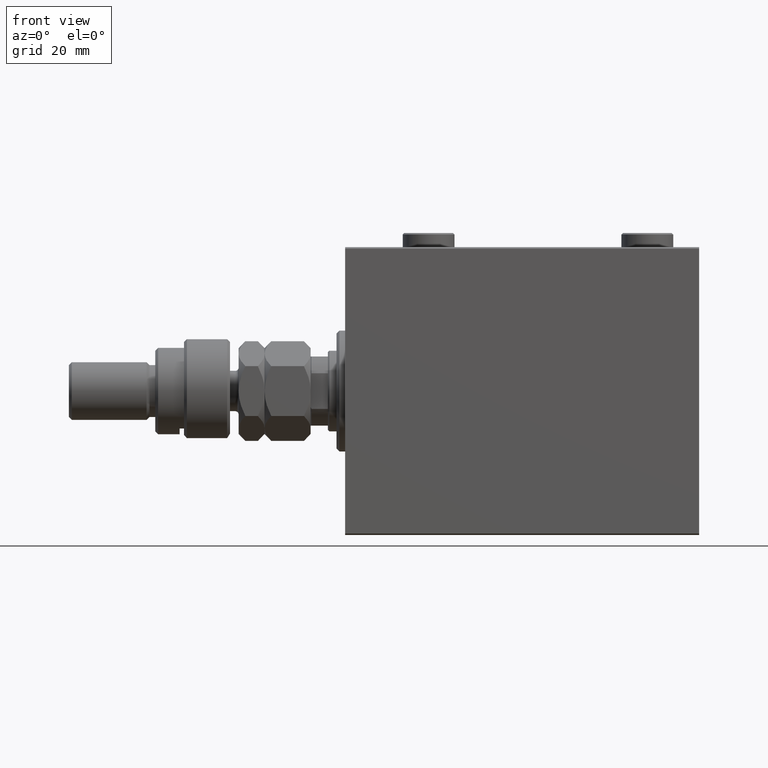
[diagram: clean part render]
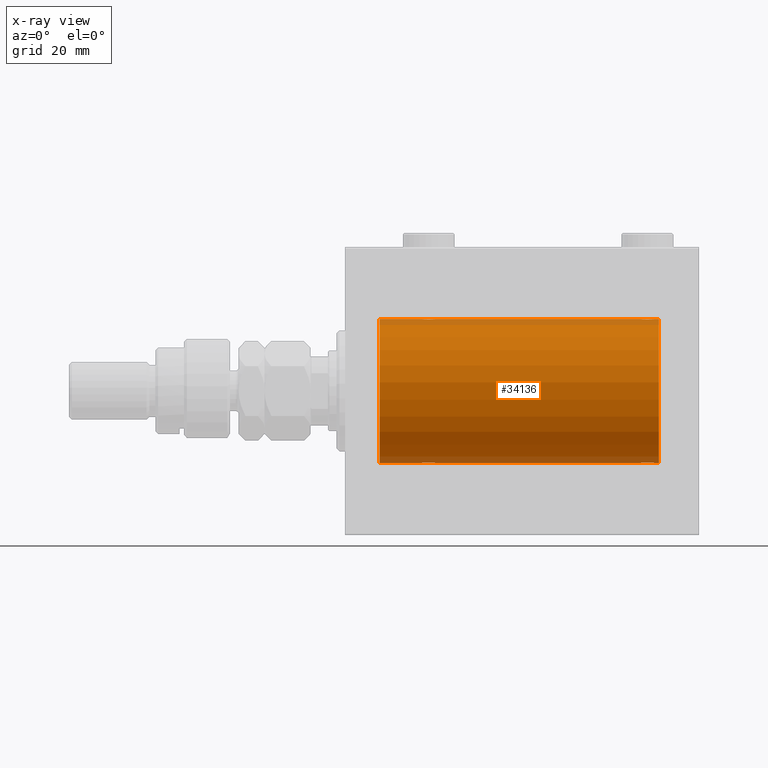
[diagram: x-ray — body ghosted, one internal face saturated and labeled with its STEP entity id]
A machine part, front view, then the same camera in x-ray: the body is ghosted and one INTERNAL B-rep face — a face not visible from any outside direction — is saturated and labeled: STEP entity #34136.
In plain terms, the highlighted cylindrical surface (partial cylindrical patch) has radius 25 mm, axis along (-1, -0, -0).
Its self-contained STEP definition (entity closure, byte-faithful):
#690 = CARTESIAN_POINT ( 'NONE',  ( 31.24760251019550950, -1.106703319666878071, -24.97594585958023572 ) ) ;
#719 = LINE ( 'NONE', #23050, #19494 ) ;
#1034 = DIRECTION ( 'NONE',  ( -1.000000000000000000, -0.000000000000000000, -0.000000000000000000 ) ) ;
#1972 = CARTESIAN_POINT ( 'NONE',  ( 11.99999999999999645, 0.000000000000000000, 0.000000000000000000 ) ) ;
#2147 = CARTESIAN_POINT ( 'NONE',  ( 106.6538333614933975, -1.881857718844729188, -24.92933960374833546 ) ) ;
#2397 = CARTESIAN_POINT ( 'NONE',  ( 107.5000000000000000, 3.061616978466108082E-15, -25.00000000000000000 ) ) ;
#2613 = CARTESIAN_POINT ( 'NONE',  ( 26.50000000000000711, -0.1631750940176210085, 25.00000000000000355 ) ) ;
#2884 = CARTESIAN_POINT ( 'NONE',  ( 107.5000000000000000, 3.101442856047762335E-15, 25.00000000000000000 ) ) ;
#3298 = CARTESIAN_POINT ( 'NONE',  ( 104.8329350482194116, -2.499872792855098780, 24.87469871246082675 ) ) ;
#3342 = LINE ( 'NONE', #22715, #31345 ) ;
#3373 = CARTESIAN_POINT ( 'NONE',  ( 102.7539362090593187, -1.109818057797434143, -24.97580694515541921 ) ) ;
#3531 = CARTESIAN_POINT ( 'NONE',  ( 102.5798509077906715, -0.6480119923854293917, 24.99212088949391131 ) ) ;
#3608 = CARTESIAN_POINT ( 'NONE',  ( 106.1103679650886136, -2.245863995402916924, -24.89899750494197050 ) ) ;
#3852 = CARTESIAN_POINT ( 'NONE',  ( 104.6740342996053670, -2.484007091859777638, -24.87630842367762796 ) ) ;
#4082 = EDGE_CURVE ( 'NONE', #18599, #10182, #45349, .T. ) ;
#4239 = EDGE_CURVE ( 'NONE', #38406, #5918, #719, .T. ) ;
#4855 = CARTESIAN_POINT ( 'NONE',  ( 27.11814045851354038, -1.653834020452936038, -24.94550385189584674 ) ) ;
#5379 = CARTESIAN_POINT ( 'NONE',  ( 31.43349355239747567, -0.6588655613945897382, 24.99312727339969697 ) ) ;
#5390 = ORIENTED_EDGE ( 'NONE', *, *, #28134, .T. ) ;
#5575 = CARTESIAN_POINT ( 'NONE',  ( 27.47743225659810307, -1.989585286700244149, -24.92087098724765681 ) ) ;
#5755 = LINE ( 'NONE', #27844, #7033 ) ;
#5830 = CARTESIAN_POINT ( 'NONE',  ( 107.4841784005765817, -0.3254210271412233957, -24.99840249400844883 ) ) ;
#5876 = CARTESIAN_POINT ( 'NONE',  ( 109.0000000000000000, 3.061616997868383043E-15, -25.00000000000000000 ) ) ;
#5918 = VERTEX_POINT ( 'NONE', #20350 ) ;
#6487 = CARTESIAN_POINT ( 'NONE',  ( 105.1632358963854443, -2.500125740978211386, 24.87467329022544860 ) ) ;
#6553 = EDGE_LOOP ( 'NONE', ( #20276, #40706, #37572, #28544, #5390, #28037, #42565, #17209, #26995, #42333, #16527, #25596 ) ) ;
#6567 = CARTESIAN_POINT ( 'NONE',  ( 107.1701129028092794, -1.252049606094338241, -24.96900299967627745 ) ) ;
#6727 = CARTESIAN_POINT ( 'NONE',  ( 107.1682764149395268, -1.255214705003183662, 24.96884293994577320 ) ) ;
#6807 = CARTESIAN_POINT ( 'NONE',  ( 105.1670649517806169, -2.499872792855096559, -24.87469871246082320 ) ) ;
#6971 = B_SPLINE_CURVE_WITH_KNOTS ( 'NONE', 3,
 ( #2397, #32323, #5830, #32568, #47557, #25213, #6567, #21532, #35762, #2147, #18330, #7534, #3608, #48050, #44350, #22262, #6807, #36734, #3852, #44839, #45078, #48525, #10742, #22743, #37465, #14414, #19051, #29374, #3373, #34022, #33299, #22501 ),
 .UNSPECIFIED., .F., .F.,
 ( 4, 2, 2, 2, 2, 2, 2, 2, 2, 2, 2, 2, 2, 2, 2, 4 ),
 ( 0.007821024441662317167, 0.008309723826317923570, 0.008798423210973531708, 0.009287122595629138111, 0.009775821980284744514, 0.01026452136494035092, 0.01075322074959595905, 0.01124192013425156546, 0.01173061951890717186, 0.01221931890356278000, 0.01270801828821838640, 0.01319671767287399280, 0.01368541705752960094, 0.01417411644218520735, 0.01466281582684081375, 0.01564021459615204390 ),
 .UNSPECIFIED. ) ;
#7033 = VECTOR ( 'NONE', #31998, 1000.000000000000000 ) ;
#7534 = CARTESIAN_POINT ( 'NONE',  ( 106.2538319542450296, -2.169003991399883091, -24.90589728951138326 ) ) ;
#8069 = CARTESIAN_POINT ( 'NONE',  ( 31.50000000000000000, -0.1631750940176180942, -25.00000000000001066 ) ) ;
#8596 = CARTESIAN_POINT ( 'NONE',  ( 29.16323589638543368, -2.500125740978201616, 24.87467329022545215 ) ) ;
#8800 = CARTESIAN_POINT ( 'NONE',  ( 26.75393620905933290, -1.109818057797416158, -24.97580694515542277 ) ) ;
#9041 = CARTESIAN_POINT ( 'NONE',  ( 28.35439333851368460, -2.420689345803756165, -24.88254961038873958 ) ) ;
#9084 = CARTESIAN_POINT ( 'NONE',  ( 30.98538033717095175, -1.528152964861317464, 24.95362559291379156 ) ) ;
#9264 = LINE ( 'NONE', #42635, #47834 ) ;
#9318 = CARTESIAN_POINT ( 'NONE',  ( 27.34616663850662377, -1.881857718844722527, 24.92933960374833902 ) ) ;
#9929 = CIRCLE ( 'NONE', #48362, 25.00000000000000000 ) ;
#10182 = VERTEX_POINT ( 'NONE', #11375 ) ;
#10223 = CARTESIAN_POINT ( 'NONE',  ( 26.75239748980448695, -1.106703319666887175, 24.97594585958023572 ) ) ;
#10297 = VECTOR ( 'NONE', #1034, 1000.000000000000000 ) ;
#10430 = CARTESIAN_POINT ( 'NONE',  ( 103.8896320349113722, -2.245863995402917812, 24.89899750494197050 ) ) ;
#10609 = CARTESIAN_POINT ( 'NONE',  ( 30.98749815834398902, -1.525407911884361312, -24.95379469572362652 ) ) ;
#10663 = CARTESIAN_POINT ( 'NONE',  ( 106.9853803371709660, -1.528152964861316132, 24.95362559291378801 ) ) ;
#10742 = CARTESIAN_POINT ( 'NONE',  ( 103.7491597607594684, -2.170728182476735491, -24.90574631553725027 ) ) ;
#10893 = DIRECTION ( 'NONE',  ( -1.000000000000000000, -0.000000000000000000, -0.000000000000000000 ) ) ;
#11375 = CARTESIAN_POINT ( 'NONE',  ( 109.0000000000000000, 0.000000000000000000, 25.00000000000000000 ) ) ;
#11976 = DIRECTION ( 'NONE',  ( -1.000000000000000000, -0.000000000000000000, -0.000000000000000000 ) ) ;
#12221 = CARTESIAN_POINT ( 'NONE',  ( 27.34878866440888245, -1.884161199660614017, -24.92916496727982434 ) ) ;
#12518 = CARTESIAN_POINT ( 'NONE',  ( 31.50000000000000000, -2.684100552846272733E-15, 25.00000000000000000 ) ) ;
#12763 = CARTESIAN_POINT ( 'NONE',  ( 29.32596570039460104, -2.484007091859770089, 24.87630842367763506 ) ) ;
#12953 = CARTESIAN_POINT ( 'NONE',  ( 29.32947680114268252, -2.483544361357266084, -24.87635491893501083 ) ) ;
#13186 = CARTESIAN_POINT ( 'NONE',  ( 26.83172358506043054, -1.255214705003178555, -24.96884293994578030 ) ) ;
#13560 = CARTESIAN_POINT ( 'NONE',  ( 107.5000000000000000, 3.061616978466108082E-15, -25.00000000000000000 ) ) ;
#13816 = EDGE_CURVE ( 'NONE', #39078, #31632, #34885, .T. ) ;
#13847 = CARTESIAN_POINT ( 'NONE',  ( 107.5000000000000284, -0.3305063766663766667, 25.00000000000000355 ) ) ;
#14095 = CARTESIAN_POINT ( 'NONE',  ( 102.7523974898044798, -1.106703319666893393, 24.97594585958023217 ) ) ;
#14340 = CARTESIAN_POINT ( 'NONE',  ( 105.6456066614863261, -2.420689345803773040, 24.88254961038873603 ) ) ;
#14414 = CARTESIAN_POINT ( 'NONE',  ( 103.1181404585135510, -1.653834020452952469, -24.94550385189584318 ) ) ;
#14816 = CARTESIAN_POINT ( 'NONE',  ( 103.7461680457549704, -2.169003991399884423, 24.90589728951138682 ) ) ;
#14848 = VERTEX_POINT ( 'NONE', #13560 ) ;
#14970 = CARTESIAN_POINT ( 'NONE',  ( 109.0000000000000000, 0.000000000000000000, 0.000000000000000000 ) ) ;
#15655 = CARTESIAN_POINT ( 'NONE',  ( 31.17011290280925451, -1.252049606094333578, -24.96900299967627745 ) ) ;
#15896 = CARTESIAN_POINT ( 'NONE',  ( 29.16706495178060621, -2.499872792855077464, -24.87469871246082320 ) ) ;
#16136 = VERTEX_POINT ( 'NONE', #2884 ) ;
#16426 = CARTESIAN_POINT ( 'NONE',  ( 26.62784030591392792, -0.8058335233485494076, 24.98746277938382576 ) ) ;
#16527 = ORIENTED_EDGE ( 'NONE', *, *, #44579, .T. ) ;
#16667 = CARTESIAN_POINT ( 'NONE',  ( 27.47463817756919013, -1.987446652080266496, 24.92104239223420592 ) ) ;
#16792 = CARTESIAN_POINT ( 'NONE',  ( 102.5000000000000000, -0.1631750940176233677, 25.00000000000000711 ) ) ;
#17209 = ORIENTED_EDGE ( 'NONE', *, *, #41521, .F. ) ;
#18302 = DIRECTION ( 'NONE',  ( -1.000000000000000000, -0.000000000000000000, -0.000000000000000000 ) ) ;
#18330 = CARTESIAN_POINT ( 'NONE',  ( 106.5253618224308099, -1.987446652080275156, -24.92104239223420592 ) ) ;
#18491 = CARTESIAN_POINT ( 'NONE',  ( 104.3509560983090410, -2.419770561643924012, 24.88263927071751525 ) ) ;
#18599 = VERTEX_POINT ( 'NONE', #5876 ) ;
#19051 = CARTESIAN_POINT ( 'NONE',  ( 103.0146196628290198, -1.528152964861329899, -24.95362559291378091 ) ) ;
#19494 = VECTOR ( 'NONE', #23783, 1000.000000000000000 ) ;
#19825 = CARTESIAN_POINT ( 'NONE',  ( 29.64904390169096970, -2.419770561643905804, -24.88263927071751169 ) ) ;
#20067 = CARTESIAN_POINT ( 'NONE',  ( 29.80788342405805835, -2.371528299825741648, -24.88734287464370709 ) ) ;
#20276 = ORIENTED_EDGE ( 'NONE', *, *, #4082, .F. ) ;
#20350 = CARTESIAN_POINT ( 'NONE',  ( 31.50000000000000000, 3.061616978460191625E-15, -25.00000000000000000 ) ) ;
#20540 = CARTESIAN_POINT ( 'NONE',  ( 30.11036796508864910, -2.245863995402895164, -24.89899750494197406 ) ) ;
#21346 = B_SPLINE_CURVE_WITH_KNOTS ( 'NONE', 3,
 ( #23800, #2613, #35076, #42927, #16426, #10223, #47526, #27225, #31628, #9318, #16667, #42449, #46612, #40143, #38751, #24039, #43825, #8596, #12763, #24275, #31394, #27474, #27711, #34834, #42690, #35316, #9084, #39232, #38985, #5379, #25182, #12518 ),
 .UNSPECIFIED., .F., .F.,
 ( 4, 2, 2, 2, 2, 2, 2, 2, 2, 2, 2, 2, 2, 2, 2, 4 ),
 ( 0.007821024441662254717, 0.008309723826317859385, 0.008798423210973464054, 0.009287122595629070457, 0.009775821980284676860, 0.01026452136494028153, 0.01075322074959588620, 0.01124192013425149260, 0.01173061951890709900, 0.01221931890356270367, 0.01270801828821830834, 0.01319671767287391301, 0.01368541705752951768, 0.01417411644218512408, 0.01466281582684072701, 0.01564021459615193982 ),
 .UNSPECIFIED. ) ;
#21532 = CARTESIAN_POINT ( 'NONE',  ( 106.9874981583439819, -1.525407911884367307, -24.95379469572361586 ) ) ;
#21695 = CARTESIAN_POINT ( 'NONE',  ( 107.2460637909406813, -1.109818057797415936, 24.97580694515541921 ) ) ;
#22127 = VERTEX_POINT ( 'NONE', #42568 ) ;
#22262 = CARTESIAN_POINT ( 'NONE',  ( 105.3294768011426896, -2.483544361357282959, -24.87635491893501793 ) ) ;
#22501 = CARTESIAN_POINT ( 'NONE',  ( 102.5000000000000000, -1.280060314878013390E-14, -25.00000000000000000 ) ) ;
#22715 = CARTESIAN_POINT ( 'NONE',  ( 109.0000000000000000, 0.000000000000000000, 25.00000000000000000 ) ) ;
#22743 = CARTESIAN_POINT ( 'NONE',  ( 103.4774322565981208, -1.989585286700261468, -24.92087098724766747 ) ) ;
#23022 = CARTESIAN_POINT ( 'NONE',  ( 31.42014909220930363, -0.6480119923854200659, -24.99212088949392196 ) ) ;
#23050 = CARTESIAN_POINT ( 'NONE',  ( 109.0000000000000000, 3.061616997868383043E-15, -25.00000000000000000 ) ) ;
#23506 = CARTESIAN_POINT ( 'NONE',  ( 28.67403429960540606, -2.484007091859761207, -24.87630842367763506 ) ) ;
#23783 = DIRECTION ( 'NONE',  ( -1.000000000000000000, -0.000000000000000000, -0.000000000000000000 ) ) ;
#23800 = CARTESIAN_POINT ( 'NONE',  ( 26.50000000000000355, -1.940558383798427991E-23, 25.00000000000000000 ) ) ;
#23993 = CARTESIAN_POINT ( 'NONE',  ( 28.83676410361457343, -2.500125740978191846, -24.87467329022545925 ) ) ;
#24039 = CARTESIAN_POINT ( 'NONE',  ( 28.67052319885731038, -2.483544361357275854, 24.87635491893501793 ) ) ;
#24148 = VECTOR ( 'NONE', #48137, 1000.000000000000000 ) ;
#24275 = CARTESIAN_POINT ( 'NONE',  ( 29.64560666148632606, -2.420689345803765935, 24.88254961038873958 ) ) ;
#24884 = CARTESIAN_POINT ( 'NONE',  ( 102.5158215994234183, -0.3254210271412262823, 24.99840249400844527 ) ) ;
#25182 = CARTESIAN_POINT ( 'NONE',  ( 31.49999999999998579, -0.3305063766663716707, 25.00000000000000000 ) ) ;
#25213 = CARTESIAN_POINT ( 'NONE',  ( 107.2476025101955486, -1.106703319666890728, -24.97594585958024282 ) ) ;
#25377 = CARTESIAN_POINT ( 'NONE',  ( 103.3461666385066309, -1.881857718844731187, 24.92933960374834257 ) ) ;
#25562 = CARTESIAN_POINT ( 'NONE',  ( 31.48417840057656747, -0.3254210271412200650, -24.99840249400844527 ) ) ;
#25566 = CARTESIAN_POINT ( 'NONE',  ( 11.99999999999999645, 3.061616997868383043E-15, -25.00000000000000000 ) ) ;
#25596 = ORIENTED_EDGE ( 'NONE', *, *, #44514, .F. ) ;
#25856 = CARTESIAN_POINT ( 'NONE',  ( 105.8043566091630225, -2.372734907014189876, 24.88722742718433523 ) ) ;
#26092 = CARTESIAN_POINT ( 'NONE',  ( 109.0000000000000000, 0.000000000000000000, 0.000000000000000000 ) ) ;
#26943 = CARTESIAN_POINT ( 'NONE',  ( 30.88412382786470900, -1.651251241585097063, -24.94567559498348075 ) ) ;
#26995 = ORIENTED_EDGE ( 'NONE', *, *, #36521, .T. ) ;
#27225 = CARTESIAN_POINT ( 'NONE',  ( 27.01250184165602164, -1.525407911884368417, 24.95379469572363007 ) ) ;
#27474 = CARTESIAN_POINT ( 'NONE',  ( 30.10723845838410284, -2.247417070759901936, 24.89885693081946272 ) ) ;
#27493 = CARTESIAN_POINT ( 'NONE',  ( 31.50000000000000000, -2.684100552846272733E-15, 25.00000000000000000 ) ) ;
#27711 = CARTESIAN_POINT ( 'NONE',  ( 30.25084023924055288, -2.170728182476724832, 24.90574631553725027 ) ) ;
#27758 = B_SPLINE_CURVE_WITH_KNOTS ( 'NONE', 3,
 ( #30381, #8069, #25562, #23022, #37983, #690, #15655, #10609, #26943, #41909, #46331, #42882, #20540, #20067, #19825, #12953, #15896, #23993, #23506, #9041, #31585, #46571, #38458, #5575, #12221, #4855, #35032, #13186, #8800, #38942, #34787, #31346 ),
 .UNSPECIFIED., .F., .F.,
 ( 4, 2, 2, 2, 2, 2, 2, 2, 2, 2, 2, 2, 2, 2, 2, 4 ),
 ( 0.007821024441662299820, 0.008309723826317907958, 0.008798423210973517830, 0.009287122595629122498, 0.009775821980284727167, 0.01026452136494033184, 0.01075322074959593650, 0.01124192013425154291, 0.01173061951890714757, 0.01221931890356275051, 0.01270801828821835691, 0.01319671767287396158, 0.01368541705752956625, 0.01417411644218517092, 0.01466281582684077732, 0.01564021459615199186 ),
 .UNSPECIFIED. ) ;
#27844 = CARTESIAN_POINT ( 'NONE',  ( 109.0000000000000000, 0.000000000000000000, 25.00000000000000000 ) ) ;
#28037 = ORIENTED_EDGE ( 'NONE', *, *, #13816, .T. ) ;
#28134 = EDGE_CURVE ( 'NONE', #5918, #39078, #27758, .T. ) ;
#28544 = ORIENTED_EDGE ( 'NONE', *, *, #4239, .T. ) ;
#29058 = CARTESIAN_POINT ( 'NONE',  ( 107.4334935523975076, -0.6588655613945838541, 24.99312727339970408 ) ) ;
#29124 = CARTESIAN_POINT ( 'NONE',  ( 102.5000000000000000, -1.280060314878013390E-14, -25.00000000000000000 ) ) ;
#29299 = CARTESIAN_POINT ( 'NONE',  ( 102.8298870971906922, -1.252049606094352230, 24.96900299967626324 ) ) ;
#29374 = CARTESIAN_POINT ( 'NONE',  ( 102.8317235850603879, -1.255214705003200537, -24.96884293994577675 ) ) ;
#29941 = DIRECTION ( 'NONE',  ( -1.000000000000000000, 0.000000000000000000, 0.000000000000000000 ) ) ;
#30381 = CARTESIAN_POINT ( 'NONE',  ( 31.50000000000000000, 3.061616978460191625E-15, -25.00000000000000000 ) ) ;
#30726 = CARTESIAN_POINT ( 'NONE',  ( 109.0000000000000000, 3.061616997868383043E-15, -25.00000000000000000 ) ) ;
#30939 = DIRECTION ( 'NONE',  ( -1.000000000000000000, 0.000000000000000000, 0.000000000000000000 ) ) ;
#31345 = VECTOR ( 'NONE', #18302, 1000.000000000000000 ) ;
#31346 = CARTESIAN_POINT ( 'NONE',  ( 26.50000000000000355, -4.113702575029848227E-15, -25.00000000000000000 ) ) ;
#31394 = CARTESIAN_POINT ( 'NONE',  ( 29.80435660916301543, -2.372734907014179662, 24.88722742718433167 ) ) ;
#31585 = CARTESIAN_POINT ( 'NONE',  ( 28.19564339083698457, -2.372734907014171224, -24.88722742718433523 ) ) ;
#31628 = CARTESIAN_POINT ( 'NONE',  ( 27.11587617213529100, -1.651251241585107055, 24.94567559498349141 ) ) ;
#31632 = VERTEX_POINT ( 'NONE', #25566 ) ;
#31998 = DIRECTION ( 'NONE',  ( -1.000000000000000000, -0.000000000000000000, -0.000000000000000000 ) ) ;
#32323 = CARTESIAN_POINT ( 'NONE',  ( 107.5000000000000000, -0.1631750940176202036, -25.00000000000000355 ) ) ;
#32356 = EDGE_CURVE ( 'NONE', #31632, #22127, #9929, .T. ) ;
#32568 = CARTESIAN_POINT ( 'NONE',  ( 107.4201490922092717, -0.6480119923854253949, -24.99212088949390775 ) ) ;
#32799 = AXIS2_PLACEMENT_3D ( 'NONE', #14970, #29941, #48358 ) ;
#32818 = EDGE_CURVE ( 'NONE', #14848, #38406, #6971, .T. ) ;
#32902 = LINE ( 'NONE', #47405, #24148 ) ;
#32982 = CARTESIAN_POINT ( 'NONE',  ( 102.6278403059138924, -0.8058335233485547366, 24.98746277938382221 ) ) ;
#33299 = CARTESIAN_POINT ( 'NONE',  ( 102.5000000000000000, -0.3305063766663864921, -25.00000000000000355 ) ) ;
#33545 = VERTEX_POINT ( 'NONE', #40677 ) ;
#34022 = CARTESIAN_POINT ( 'NONE',  ( 102.5665064476025066, -0.6588655613946048373, -24.99312727339970053 ) ) ;
#34136 = ADVANCED_FACE ( 'NONE', ( #36895 ), #44503, .F. ) ;
#34783 = VERTEX_POINT ( 'NONE', #38389 ) ;
#34787 = CARTESIAN_POINT ( 'NONE',  ( 26.50000000000000000, -0.3305063766663763336, -25.00000000000000355 ) ) ;
#34834 = CARTESIAN_POINT ( 'NONE',  ( 30.52256774340189693, -1.989585286700248590, 24.92087098724766392 ) ) ;
#34885 = LINE ( 'NONE', #30726, #10297 ) ;
#35032 = CARTESIAN_POINT ( 'NONE',  ( 27.01461966282905180, -1.528152964861308138, -24.95362559291378801 ) ) ;
#35076 = CARTESIAN_POINT ( 'NONE',  ( 26.51582159942343253, -0.3254210271412228961, 24.99840249400844527 ) ) ;
#35316 = CARTESIAN_POINT ( 'NONE',  ( 30.88185954148645962, -1.653834020452942255, 24.94550385189584674 ) ) ;
#35448 = CARTESIAN_POINT ( 'NONE',  ( 102.5000000000000000, -1.940242839436339586E-23, 25.00000000000000000 ) ) ;
#35762 = CARTESIAN_POINT ( 'NONE',  ( 106.8841238278646983, -1.651251241585112384, -24.94567559498348430 ) ) ;
#36023 = B_SPLINE_CURVE_WITH_KNOTS ( 'NONE', 3,
 ( #35448, #16792, #24884, #3531, #32982, #14095, #29299, #48444, #47978, #25377, #36904, #14816, #10430, #39846, #18491, #36411, #3298, #6487, #44513, #14340, #25856, #40333, #40575, #47723, #48214, #44272, #10663, #6727, #21695, #29058, #13847, #43535 ),
 .UNSPECIFIED., .F., .F.,
 ( 4, 2, 2, 2, 2, 2, 2, 2, 2, 2, 2, 2, 2, 2, 2, 4 ),
 ( 0.007821024441662331045, 0.008309723826317942652, 0.008798423210973554259, 0.009287122595629165867, 0.009775821980284777474, 0.01026452136494038908, 0.01075322074959600069, 0.01124192013425161230, 0.01173061951890722390, 0.01221931890356283551, 0.01270801828821844712, 0.01319671767287405872, 0.01368541705752967033, 0.01417411644218528194, 0.01466281582684089355, 0.01564021459615209941 ),
 .UNSPECIFIED. ) ;
#36411 = CARTESIAN_POINT ( 'NONE',  ( 104.6705231988573246, -2.483544361357286956, 24.87635491893501438 ) ) ;
#36456 = EDGE_CURVE ( 'NONE', #33545, #37999, #32902, .T. ) ;
#36521 = EDGE_CURVE ( 'NONE', #34783, #37999, #21346, .T. ) ;
#36734 = CARTESIAN_POINT ( 'NONE',  ( 104.8367641036145415, -2.500125740978209610, -24.87467329022544149 ) ) ;
#36895 = FACE_OUTER_BOUND ( 'NONE', #6553, .T. ) ;
#36904 = CARTESIAN_POINT ( 'NONE',  ( 103.4746381775692186, -1.987446652080276488, 24.92104239223420947 ) ) ;
#37465 = CARTESIAN_POINT ( 'NONE',  ( 103.3487886644089144, -1.884161199660632224, -24.92916496727982789 ) ) ;
#37572 = ORIENTED_EDGE ( 'NONE', *, *, #32818, .T. ) ;
#37983 = CARTESIAN_POINT ( 'NONE',  ( 31.37215969408607563, -0.8058335233485418581, -24.98746277938382931 ) ) ;
#37999 = VERTEX_POINT ( 'NONE', #27493 ) ;
#38290 = DIRECTION ( 'NONE',  ( 0.000000000000000000, 0.000000000000000000, 1.000000000000000000 ) ) ;
#38389 = CARTESIAN_POINT ( 'NONE',  ( 26.50000000000000355, -1.940558383798427991E-23, 25.00000000000000000 ) ) ;
#38406 = VERTEX_POINT ( 'NONE', #29124 ) ;
#38458 = CARTESIAN_POINT ( 'NONE',  ( 27.74915976075945068, -2.170728182476717283, -24.90574631553725027 ) ) ;
#38751 = CARTESIAN_POINT ( 'NONE',  ( 28.35095609830903385, -2.419770561643914686, 24.88263927071751169 ) ) ;
#38942 = CARTESIAN_POINT ( 'NONE',  ( 26.56650644760252789, -0.6588655613945878509, -24.99312727339970763 ) ) ;
#38985 = CARTESIAN_POINT ( 'NONE',  ( 31.24606379094066355, -1.109818057797419710, 24.97580694515541921 ) ) ;
#39078 = VERTEX_POINT ( 'NONE', #39277 ) ;
#39232 = CARTESIAN_POINT ( 'NONE',  ( 31.16827641493956591, -1.255214705003186770, 24.96884293994577320 ) ) ;
#39277 = CARTESIAN_POINT ( 'NONE',  ( 26.50000000000000355, -4.113702575029848227E-15, -25.00000000000000000 ) ) ;
#39746 = AXIS2_PLACEMENT_3D ( 'NONE', #26092, #10893, #40817 ) ;
#39846 = CARTESIAN_POINT ( 'NONE',  ( 104.1921165759419523, -2.371528299825766073, 24.88734287464371775 ) ) ;
#40143 = CARTESIAN_POINT ( 'NONE',  ( 28.19211657594194875, -2.371528299825753638, 24.88734287464371420 ) ) ;
#40333 = CARTESIAN_POINT ( 'NONE',  ( 106.1072384583841028, -2.247417070759912594, 24.89885693081946627 ) ) ;
#40575 = CARTESIAN_POINT ( 'NONE',  ( 106.2508402392405742, -2.170728182476736379, 24.90574631553725027 ) ) ;
#40677 = CARTESIAN_POINT ( 'NONE',  ( 102.5000000000000000, -1.940242839436339586E-23, 25.00000000000000000 ) ) ;
#40706 = ORIENTED_EDGE ( 'NONE', *, *, #41235, .T. ) ;
#40817 = DIRECTION ( 'NONE',  ( 0.000000000000000000, 0.000000000000000000, 1.000000000000000000 ) ) ;
#41235 = EDGE_CURVE ( 'NONE', #18599, #14848, #9264, .T. ) ;
#41521 = EDGE_CURVE ( 'NONE', #34783, #22127, #3342, .T. ) ;
#41909 = CARTESIAN_POINT ( 'NONE',  ( 30.65383336149337978, -1.881857718844712091, -24.92933960374833546 ) ) ;
#42333 = ORIENTED_EDGE ( 'NONE', *, *, #36456, .F. ) ;
#42449 = CARTESIAN_POINT ( 'NONE',  ( 27.74616804575497042, -2.169003991399875098, 24.90589728951138326 ) ) ;
#42565 = ORIENTED_EDGE ( 'NONE', *, *, #32356, .T. ) ;
#42568 = CARTESIAN_POINT ( 'NONE',  ( 11.99999999999999645, 0.000000000000000000, 25.00000000000000000 ) ) ;
#42635 = CARTESIAN_POINT ( 'NONE',  ( 109.0000000000000000, 3.061616997868383043E-15, -25.00000000000000000 ) ) ;
#42690 = CARTESIAN_POINT ( 'NONE',  ( 30.65121133559112820, -1.884161199660621344, 24.92916496727982434 ) ) ;
#42882 = CARTESIAN_POINT ( 'NONE',  ( 30.25383195424502958, -2.169003991399867104, -24.90589728951138326 ) ) ;
#42927 = CARTESIAN_POINT ( 'NONE',  ( 26.57985090779070347, -0.6480119923854233965, 24.99212088949390775 ) ) ;
#43535 = CARTESIAN_POINT ( 'NONE',  ( 107.5000000000000000, 3.101442856047762335E-15, 25.00000000000000000 ) ) ;
#43825 = CARTESIAN_POINT ( 'NONE',  ( 28.83293504821939379, -2.499872792855087678, 24.87469871246082320 ) ) ;
#44272 = CARTESIAN_POINT ( 'NONE',  ( 106.8818595414864774, -1.653834020452950915, 24.94550385189584318 ) ) ;
#44350 = CARTESIAN_POINT ( 'NONE',  ( 105.6490439016909733, -2.419770561643919127, -24.88263927071750814 ) ) ;
#44503 = CYLINDRICAL_SURFACE ( 'NONE', #39746, 25.00000000000000000 ) ;
#44513 = CARTESIAN_POINT ( 'NONE',  ( 105.3259657003945904, -2.484007091859779859, 24.87630842367763151 ) ) ;
#44514 = EDGE_CURVE ( 'NONE', #10182, #16136, #5755, .T. ) ;
#44579 = EDGE_CURVE ( 'NONE', #33545, #16136, #36023, .T. ) ;
#44839 = CARTESIAN_POINT ( 'NONE',  ( 104.3543933385136739, -2.420689345803770820, -24.88254961038873248 ) ) ;
#45078 = CARTESIAN_POINT ( 'NONE',  ( 104.1956433908369490, -2.372734907014188099, -24.88722742718433167 ) ) ;
#45349 = CIRCLE ( 'NONE', #32799, 25.00000000000000000 ) ;
#46331 = CARTESIAN_POINT ( 'NONE',  ( 30.52536182243081342, -1.987446652080259391, -24.92104239223420592 ) ) ;
#46571 = CARTESIAN_POINT ( 'NONE',  ( 27.89276154161591137, -2.247417070759893498, -24.89885693081945917 ) ) ;
#46612 = CARTESIAN_POINT ( 'NONE',  ( 27.88963203491136156, -2.245863995402906266, 24.89899750494197050 ) ) ;
#47405 = CARTESIAN_POINT ( 'NONE',  ( 109.0000000000000000, 0.000000000000000000, 25.00000000000000000 ) ) ;
#47526 = CARTESIAN_POINT ( 'NONE',  ( 26.82988709719076326, -1.252049606094339795, 24.96900299967627745 ) ) ;
#47557 = CARTESIAN_POINT ( 'NONE',  ( 107.3721596940861076, -0.8058335233485520721, -24.98746277938383287 ) ) ;
#47723 = CARTESIAN_POINT ( 'NONE',  ( 106.5225677434019076, -1.989585286700262801, 24.92087098724766747 ) ) ;
#47834 = VECTOR ( 'NONE', #11976, 1000.000000000000000 ) ;
#47978 = CARTESIAN_POINT ( 'NONE',  ( 103.1158761721352590, -1.651251241585114826, 24.94567559498347720 ) ) ;
#48050 = CARTESIAN_POINT ( 'NONE',  ( 105.8078834240580619, -2.371528299825764297, -24.88734287464370709 ) ) ;
#48137 = DIRECTION ( 'NONE',  ( -1.000000000000000000, -0.000000000000000000, -0.000000000000000000 ) ) ;
#48214 = CARTESIAN_POINT ( 'NONE',  ( 106.6512113355911424, -1.884161199660632668, 24.92916496727982789 ) ) ;
#48358 = DIRECTION ( 'NONE',  ( 0.000000000000000000, 0.000000000000000000, 1.000000000000000000 ) ) ;
#48362 = AXIS2_PLACEMENT_3D ( 'NONE', #1972, #30939, #38290 ) ;
#48444 = CARTESIAN_POINT ( 'NONE',  ( 103.0125018416560181, -1.525407911884381074, 24.95379469572361586 ) ) ;
#48525 = CARTESIAN_POINT ( 'NONE',  ( 103.8927615416159114, -2.247417070759910818, -24.89885693081946272 ) ) ;